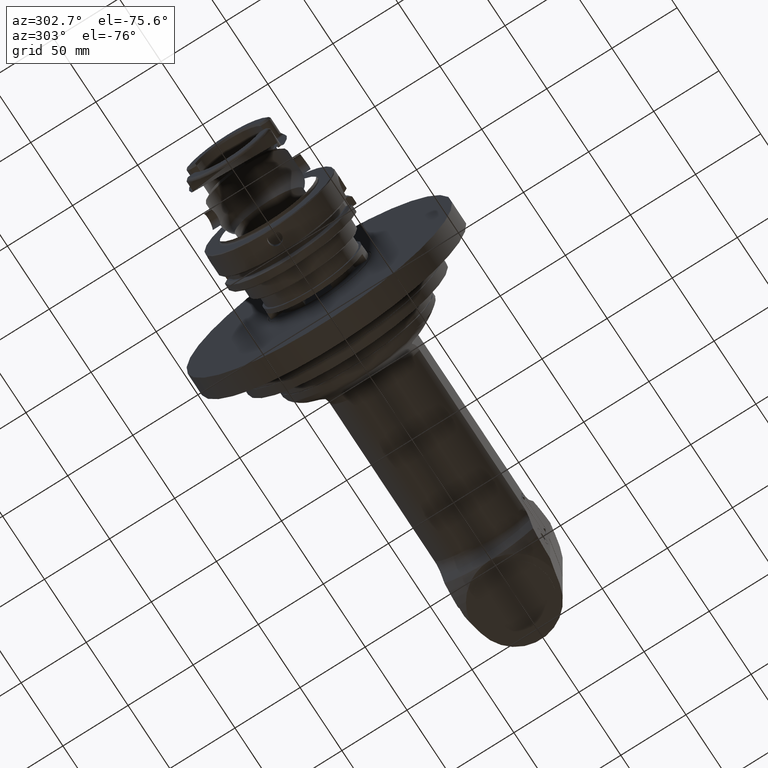
[diagram: clean part render]
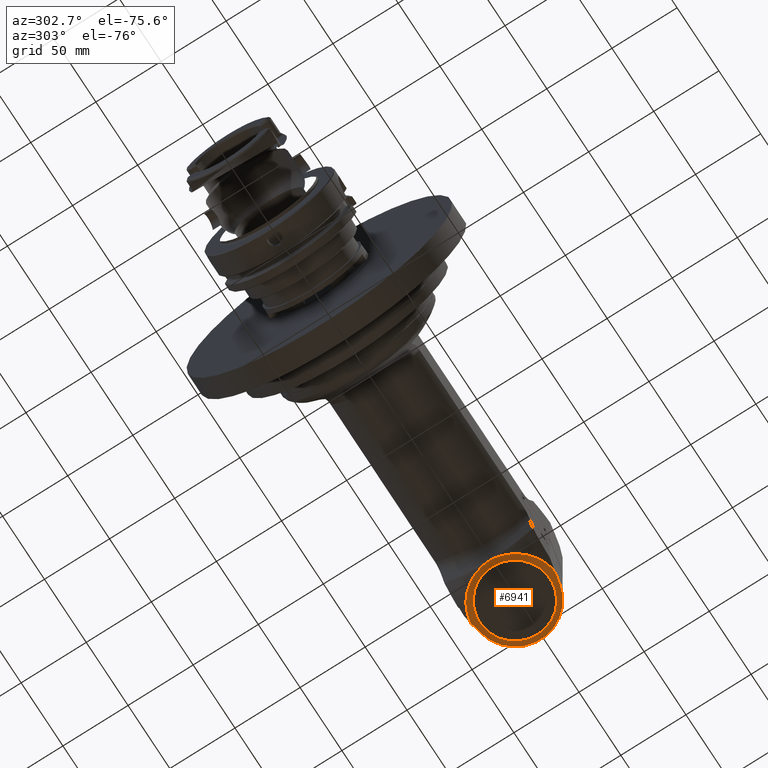
[diagram: same view with one face highlighted and labeled with its STEP entity id]
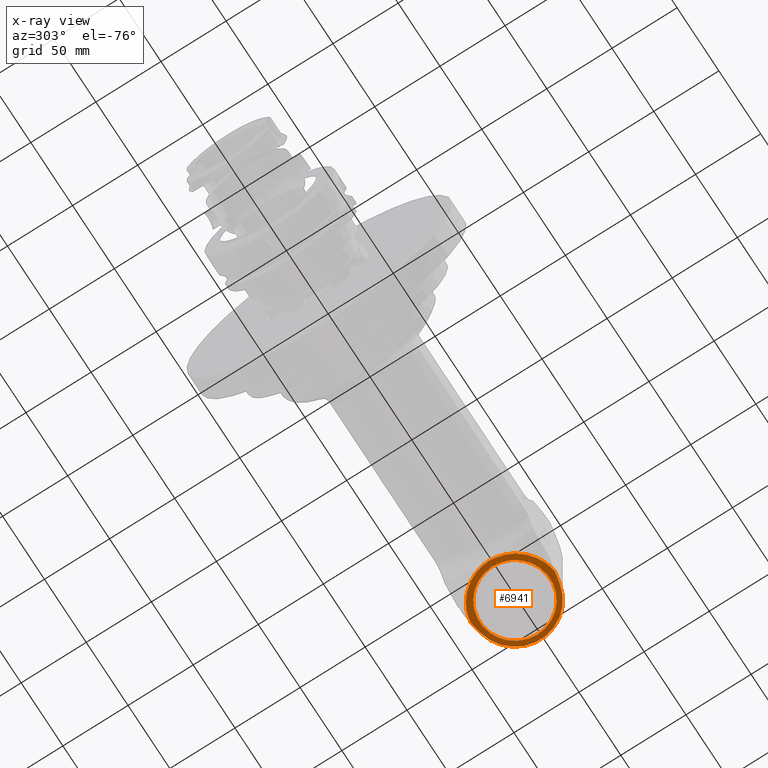
[diagram: x-ray of the same camera — body ghosted, the highlighted face saturated]
A machine part, auxiliary view. The second image highlights one B-rep face of the part: STEP entity #6941.
The next image is the same camera in x-ray: the body ghosted, the highlighted face saturated — about 0% of this face is hidden behind the body in this view.
In plain terms, the highlighted planar face has unit normal (0, 0, 1).
Its self-contained STEP definition (entity closure, byte-faithful):
#94=FACE_BOUND('',#2053,.T.);
#348=(
BOUNDED_CURVE()
B_SPLINE_CURVE(2,(#12338,#12339,#12340),.UNSPECIFIED.,.F.,.F.)
B_SPLINE_CURVE_WITH_KNOTS((3,3),(2.8890460551963,3.30503850364825),
 .UNSPECIFIED.)
CURVE()
GEOMETRIC_REPRESENTATION_ITEM()
RATIONAL_B_SPLINE_CURVE((1.00189285232446,1.00192046160566,1.00191677729234))
REPRESENTATION_ITEM('')
);
#349=(
BOUNDED_CURVE()
B_SPLINE_CURVE(2,(#12342,#12343,#12344),.UNSPECIFIED.,.F.,.F.)
B_SPLINE_CURVE_WITH_KNOTS((3,3),(2.73250469863899,3.2820610920918),
 .UNSPECIFIED.)
CURVE()
GEOMETRIC_REPRESENTATION_ITEM()
RATIONAL_B_SPLINE_CURVE((1.00758488247953,1.0078305036253,1.00786812521812))
REPRESENTATION_ITEM('')
);
#350=(
BOUNDED_CURVE()
B_SPLINE_CURVE(2,(#12346,#12347,#12348),.UNSPECIFIED.,.F.,.F.)
B_SPLINE_CURVE_WITH_KNOTS((3,3),(2.60299852986322,3.23094227550699),
 .UNSPECIFIED.)
CURVE()
GEOMETRIC_REPRESENTATION_ITEM()
RATIONAL_B_SPLINE_CURVE((1.01701944945483,1.01790913200029,1.01823760109075))
REPRESENTATION_ITEM('')
);
#351=(
BOUNDED_CURVE()
B_SPLINE_CURVE(2,(#12350,#12351,#12352),.UNSPECIFIED.,.F.,.F.)
B_SPLINE_CURVE_WITH_KNOTS((3,3),(-3.2426030374205,-2.47237872202892),
 .UNSPECIFIED.)
CURVE()
GEOMETRIC_REPRESENTATION_ITEM()
RATIONAL_B_SPLINE_CURVE((1.03379824895395,1.03261224900776,1.03008271885596))
REPRESENTATION_ITEM('')
);
#352=(
BOUNDED_CURVE()
B_SPLINE_CURVE(2,(#12354,#12355,#12356),.UNSPECIFIED.,.F.,.F.)
B_SPLINE_CURVE_WITH_KNOTS((3,3),(-3.52108483565095,-2.47423986323538),
 .UNSPECIFIED.)
CURVE()
GEOMETRIC_REPRESENTATION_ITEM()
RATIONAL_B_SPLINE_CURVE((1.06077805262333,1.05767188867365,1.0510404176325))
REPRESENTATION_ITEM('')
);
#353=(
BOUNDED_CURVE()
B_SPLINE_CURVE(2,(#12358,#12359,#12360),.UNSPECIFIED.,.F.,.F.)
B_SPLINE_CURVE_WITH_KNOTS((3,3),(9.44718045125392,12.5133383101407),
 .UNSPECIFIED.)
CURVE()
GEOMETRIC_REPRESENTATION_ITEM()
RATIONAL_B_SPLINE_CURVE((1.37294381060703,1.37294381060703,1.3336586979427))
REPRESENTATION_ITEM('')
);
#354=(
BOUNDED_CURVE()
B_SPLINE_CURVE(2,(#12362,#12363,#12364),.UNSPECIFIED.,.F.,.F.)
B_SPLINE_CURVE_WITH_KNOTS((3,3),(6.38102259223961,9.44718045125392),
 .UNSPECIFIED.)
CURVE()
GEOMETRIC_REPRESENTATION_ITEM()
RATIONAL_B_SPLINE_CURVE((1.33365869793943,1.37294381060703,1.37294381060703))
REPRESENTATION_ITEM('')
);
#355=(
BOUNDED_CURVE()
B_SPLINE_CURVE(2,(#12366,#12367,#12368),.UNSPECIFIED.,.F.,.F.)
B_SPLINE_CURVE_WITH_KNOTS((3,3),(5.36592678001913,6.41278495679146),
 .UNSPECIFIED.)
CURVE()
GEOMETRIC_REPRESENTATION_ITEM()
RATIONAL_B_SPLINE_CURVE((1.0607732138904,1.05766659348912,1.0510346879787))
REPRESENTATION_ITEM('')
);
#356=(
BOUNDED_CURVE()
B_SPLINE_CURVE(2,(#12370,#12371,#12372),.UNSPECIFIED.,.F.,.F.)
B_SPLINE_CURVE_WITH_KNOTS((3,3),(-5.37267851345797,-4.60245136037228),
 .UNSPECIFIED.)
CURVE()
GEOMETRIC_REPRESENTATION_ITEM()
RATIONAL_B_SPLINE_CURVE((1.03008187879672,1.03261146724866,1.03379752672962))
REPRESENTATION_ITEM('')
);
#357=(
BOUNDED_CURVE()
B_SPLINE_CURVE(2,(#12374,#12375,#12376),.UNSPECIFIED.,.F.,.F.)
B_SPLINE_CURVE_WITH_KNOTS((3,3),(-4.59394714574238,-3.96600201895408),
 .UNSPECIFIED.)
CURVE()
GEOMETRIC_REPRESENTATION_ITEM()
RATIONAL_B_SPLINE_CURVE((1.01701917435147,1.01790887547478,1.0182373633069))
REPRESENTATION_ITEM('')
);
#358=(
BOUNDED_CURVE()
B_SPLINE_CURVE(2,(#12378,#12379,#12380),.UNSPECIFIED.,.F.,.F.)
B_SPLINE_CURVE_WITH_KNOTS((3,3),(3.48086593442456,4.03042302568933),
 .UNSPECIFIED.)
CURVE()
GEOMETRIC_REPRESENTATION_ITEM()
RATIONAL_B_SPLINE_CURVE((1.00786805298868,1.00783042569794,1.00758479886956))
REPRESENTATION_ITEM('')
);
#359=(
BOUNDED_CURVE()
B_SPLINE_CURVE(2,(#12381,#12382,#12383),.UNSPECIFIED.,.F.,.F.)
B_SPLINE_CURVE_WITH_KNOTS((3,3),(3.20708756850674,3.62308024359822),
 .UNSPECIFIED.)
CURVE()
GEOMETRIC_REPRESENTATION_ITEM()
RATIONAL_B_SPLINE_CURVE((1.00191676364348,1.00192044707152,1.00189283690598))
REPRESENTATION_ITEM('')
);
#602=LINE('',#12321,#1016);
#605=LINE('',#12329,#1019);
#1016=VECTOR('',#9081,8.87507655635602);
#1019=VECTOR('',#9090,8.87507655635703);
#1305=PLANE('',#7637);
#1604=FACE_OUTER_BOUND('',#2052,.T.);
#2052=EDGE_LOOP('',(#5601,#5602,#5603,#5604,#5605,#5606,#5607,#5608,#5609,
#5610,#5611,#5612,#5613,#5614,#5615));
#2053=EDGE_LOOP('',(#5616));
#2640=CIRCLE('',#7634,31.);
#2641=CIRCLE('',#7638,27.);
#3224=VERTEX_POINT('',#12315);
#3225=VERTEX_POINT('',#12320);
#3226=VERTEX_POINT('',#12324);
#3227=VERTEX_POINT('',#12328);
#3229=VERTEX_POINT('',#12337);
#3230=VERTEX_POINT('',#12341);
#3231=VERTEX_POINT('',#12345);
#3232=VERTEX_POINT('',#12349);
#3233=VERTEX_POINT('',#12353);
#3234=VERTEX_POINT('',#12357);
#3235=VERTEX_POINT('',#12361);
#3236=VERTEX_POINT('',#12365);
#3237=VERTEX_POINT('',#12369);
#3238=VERTEX_POINT('',#12373);
#3239=VERTEX_POINT('',#12377);
#3240=VERTEX_POINT('',#12384);
#4082=EDGE_CURVE('',#3225,#3224,#602,.T.);
#4084=EDGE_CURVE('',#3226,#3225,#2640,.T.);
#4086=EDGE_CURVE('',#3227,#3226,#605,.T.);
#4089=EDGE_CURVE('',#3229,#3224,#348,.T.);
#4090=EDGE_CURVE('',#3230,#3229,#349,.T.);
#4091=EDGE_CURVE('',#3231,#3230,#350,.T.);
#4092=EDGE_CURVE('',#3231,#3232,#351,.T.);
#4093=EDGE_CURVE('',#3232,#3233,#352,.T.);
#4094=EDGE_CURVE('',#3234,#3233,#353,.T.);
#4095=EDGE_CURVE('',#3235,#3234,#354,.T.);
#4096=EDGE_CURVE('',#3236,#3235,#355,.T.);
#4097=EDGE_CURVE('',#3236,#3237,#356,.T.);
#4098=EDGE_CURVE('',#3237,#3238,#357,.T.);
#4099=EDGE_CURVE('',#3239,#3238,#358,.T.);
#4100=EDGE_CURVE('',#3227,#3239,#359,.T.);
#4101=EDGE_CURVE('',#3240,#3240,#2641,.T.);
#5601=ORIENTED_EDGE('',*,*,#4082,.T.);
#5602=ORIENTED_EDGE('',*,*,#4089,.F.);
#5603=ORIENTED_EDGE('',*,*,#4090,.F.);
#5604=ORIENTED_EDGE('',*,*,#4091,.F.);
#5605=ORIENTED_EDGE('',*,*,#4092,.T.);
#5606=ORIENTED_EDGE('',*,*,#4093,.T.);
#5607=ORIENTED_EDGE('',*,*,#4094,.F.);
#5608=ORIENTED_EDGE('',*,*,#4095,.F.);
#5609=ORIENTED_EDGE('',*,*,#4096,.F.);
#5610=ORIENTED_EDGE('',*,*,#4097,.T.);
#5611=ORIENTED_EDGE('',*,*,#4098,.T.);
#5612=ORIENTED_EDGE('',*,*,#4099,.F.);
#5613=ORIENTED_EDGE('',*,*,#4100,.F.);
#5614=ORIENTED_EDGE('',*,*,#4086,.T.);
#5615=ORIENTED_EDGE('',*,*,#4084,.T.);
#5616=ORIENTED_EDGE('',*,*,#4101,.F.);
#6941=ADVANCED_FACE('',(#1604,#94),#1305,.F.);
#7634=AXIS2_PLACEMENT_3D('',#12325,#9085,#9086);
#7637=AXIS2_PLACEMENT_3D('',#12336,#9093,#9094);
#7638=AXIS2_PLACEMENT_3D('',#12385,#9095,#9096);
#9081=DIRECTION('',(-0.978147600733797,0.,-0.207911690817799));
#9085=DIRECTION('center_axis',(0.,1.,0.));
#9086=DIRECTION('ref_axis',(0.207911690817089,0.,0.978147600733948));
#9090=DIRECTION('',(0.978147600733797,0.,-0.207911690817799));
#9093=DIRECTION('center_axis',(0.,-1.,0.));
#9094=DIRECTION('ref_axis',(-1.,0.,0.));
#9095=DIRECTION('center_axis',(0.,1.,0.));
#9096=DIRECTION('ref_axis',(-1.,0.,0.));
#12315=CARTESIAN_POINT('',(203.2641275754,49.,-32.16780779572));
#12320=CARTESIAN_POINT('',(211.9452624153,49.,-30.32257562275));
#12321=CARTESIAN_POINT('',(211.9452624153,49.,-30.32257562275));
#12324=CARTESIAN_POINT('',(211.9452624153,49.,30.32257562275));
#12325=CARTESIAN_POINT('Origin',(205.5,49.,0.));
#12328=CARTESIAN_POINT('',(203.2641275754,49.,32.16780779572));
#12329=CARTESIAN_POINT('',(203.2641275754,49.,32.16780779572));
#12336=CARTESIAN_POINT('Origin',(181.355342,49.,-60.0000024));
#12337=CARTESIAN_POINT('',(199.1961524227,49.,-31.51462939104));
#12338=CARTESIAN_POINT('Ctrl Pts',(199.1961524227,49.,-31.5146293910373));
#12339=CARTESIAN_POINT('Ctrl Pts',(201.209277783046,49.,-31.840224080351));
#12340=CARTESIAN_POINT('Ctrl Pts',(203.2641275754,49.,-32.1678077957183));
#12341=CARTESIAN_POINT('',(194.196152435399,48.9999999979613,-29.8533396915208));
#12342=CARTESIAN_POINT('Ctrl Pts',(194.196152436751,49.,-29.8533396875327));
#12343=CARTESIAN_POINT('Ctrl Pts',(196.62847503532,49.,-30.6776515930376));
#12344=CARTESIAN_POINT('Ctrl Pts',(199.196152422697,49.,-31.514629391034));
#12345=CARTESIAN_POINT('',(189.196153614754,48.9999997533243,-27.1895805672265));
#12346=CARTESIAN_POINT('Ctrl Pts',(189.196153851809,49.,-27.1895801390955));
#12347=CARTESIAN_POINT('Ctrl Pts',(191.579409523437,49.,-28.505726864371));
#12348=CARTESIAN_POINT('Ctrl Pts',(194.1961524363,49.,-29.8533396897727));
#12349=CARTESIAN_POINT('',(184.1961524227,49.,-23.20825135876));
#12350=CARTESIAN_POINT('Ctrl Pts',(189.196153770346,49.,-27.1895803608153));
#12351=CARTESIAN_POINT('Ctrl Pts',(186.498657989128,49.,-25.1660586915538));
#12352=CARTESIAN_POINT('Ctrl Pts',(184.196152422696,49.,-23.2082513587645));
#12353=CARTESIAN_POINT('',(179.1961524227,49.,-17.06560767263));
#12354=CARTESIAN_POINT('Ctrl Pts',(184.196152422692,49.,-23.2082513587661));
#12355=CARTESIAN_POINT('Ctrl Pts',(181.314847785256,49.,-20.0694406912642));
#12356=CARTESIAN_POINT('Ctrl Pts',(179.196152422662,49.,-17.0656076725935));
#12357=CARTESIAN_POINT('',(174.1961524227,49.,2.167155344068E-13));
#12358=CARTESIAN_POINT('Ctrl Pts',(174.196152422707,49.,1.34558391880542E-13));
#12359=CARTESIAN_POINT('Ctrl Pts',(174.196152422707,49.,-8.28864806111909));
#12360=CARTESIAN_POINT('Ctrl Pts',(179.196152422426,49.,-17.06560767214));
#12361=CARTESIAN_POINT('',(179.1961524227,49.,17.06560767263));
#12362=CARTESIAN_POINT('Ctrl Pts',(179.196152422854,49.,17.0656076728921));
#12363=CARTESIAN_POINT('Ctrl Pts',(174.196152422707,49.,8.28864806146423));
#12364=CARTESIAN_POINT('Ctrl Pts',(174.196152422707,49.,1.34558391880542E-13));
#12365=CARTESIAN_POINT('',(184.1961524227,49.,23.20825135876));
#12366=CARTESIAN_POINT('Ctrl Pts',(184.196152422692,49.,23.2082513587661));
#12367=CARTESIAN_POINT('Ctrl Pts',(181.314847785256,49.,20.0694406912643));
#12368=CARTESIAN_POINT('Ctrl Pts',(179.196152422663,49.,17.0656076725937));
#12369=CARTESIAN_POINT('',(189.196153614259,48.9999997534267,27.189580566721));
#12370=CARTESIAN_POINT('Ctrl Pts',(184.196152422696,49.,23.2082513587645));
#12371=CARTESIAN_POINT('Ctrl Pts',(186.498657988889,49.,25.1660586913509));
#12372=CARTESIAN_POINT('Ctrl Pts',(189.196153769787,49.,27.1895803603952));
#12373=CARTESIAN_POINT('',(194.196152435398,48.9999999979615,29.85333969152));
#12374=CARTESIAN_POINT('Ctrl Pts',(189.196153851215,49.,27.1895801387676));
#12375=CARTESIAN_POINT('Ctrl Pts',(191.579409523111,49.,28.5057268642029));
#12376=CARTESIAN_POINT('Ctrl Pts',(194.196152436298,49.,29.8533396897721));
#12377=CARTESIAN_POINT('',(199.19615245125,48.9999999970247,31.5146294026062));
#12378=CARTESIAN_POINT('Ctrl Pts',(199.196152451932,49.,31.5146294005635));
#12379=CARTESIAN_POINT('Ctrl Pts',(196.628475049164,49.,30.677651597729));
#12380=CARTESIAN_POINT('Ctrl Pts',(194.196152436749,49.,29.8533396875323));
#12381=CARTESIAN_POINT('Ctrl Pts',(203.2641275754,49.,32.1678077957183));
#12382=CARTESIAN_POINT('Ctrl Pts',(201.20927779818,49.,31.8402240827635));
#12383=CARTESIAN_POINT('Ctrl Pts',(199.196152452354,49.,31.5146293958334));
#12384=CARTESIAN_POINT('',(232.5,49.,-3.30654635769785E-15));
#12385=CARTESIAN_POINT('Origin',(205.5,49.,0.));